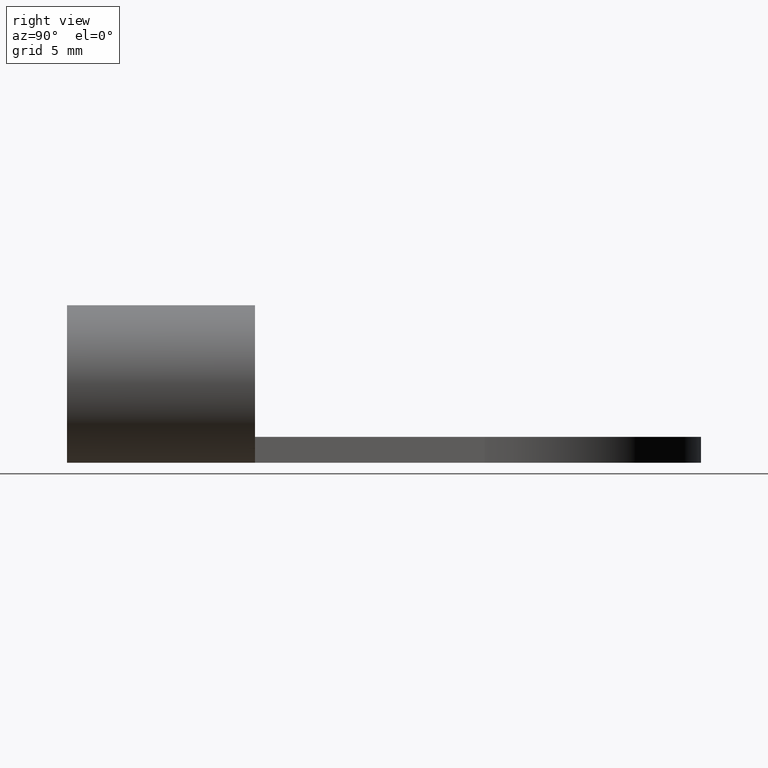
[diagram: clean part render]
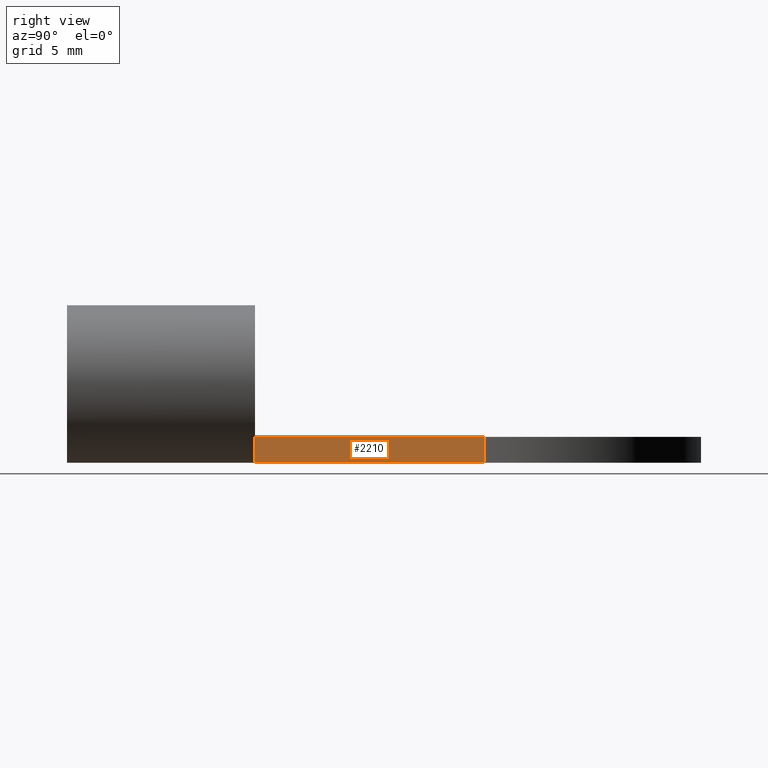
[diagram: same view with one face highlighted and labeled with its STEP entity id]
A machine part, right view. The second image highlights one B-rep face of the part: STEP entity #2210.
In plain terms, the highlighted planar face has unit normal (0.9478, -0.3187, 0).
Its self-contained STEP definition (entity closure, byte-faithful):
#730=CARTESIAN_POINT('',(-3.80147815764083,214.840294226998,
128.357204948997));
#740=VERTEX_POINT('',#730);
#770=CARTESIAN_POINT('',(0.,215.497328884413,128.470164278242));
#780=DIRECTION('',(0.984968130986959,0.170238568175705,
0.0292679149503728));
#790=VECTOR('',#780,1.);
#800=LINE('',#770,#790);
#810=CARTESIAN_POINT('',(6.35002696791049,216.594846118612,
128.658852666609));
#820=VERTEX_POINT('',#810);
#830=EDGE_CURVE('',#740,#820,#800,.T.);
#1120=CARTESIAN_POINT('',(0.,215.683709738163,127.386069182157));
#1130=DIRECTION('',(-0.984968130986959,-0.170238568175705,
-0.0292679149503728));
#1140=VECTOR('',#1130,1.);
#1150=LINE('',#1120,#1140);
#1160=CARTESIAN_POINT('',(6.35002696140251,216.781226971236,
127.574757570331));
#1170=VERTEX_POINT('',#1160);
#1180=CARTESIAN_POINT('',(-3.80147816414881,215.026675079622,
127.273109852719));
#1190=VERTEX_POINT('',#1180);
#1200=EDGE_CURVE('',#1170,#1190,#1150,.T.);
#1880=CARTESIAN_POINT('',(6.35002696140251,216.781226971236,
127.574757570331));
#1890=DIRECTION('',(5.91634389571428E-9,-0.169437138749457,
0.985540996616781));
#1900=VECTOR('',#1890,1.);
#1910=LINE('',#1880,#1900);
#1920=EDGE_CURVE('',#1170,#820,#1910,.T.);
#2050=CARTESIAN_POINT('',(-3.80147816414881,215.026675079622,
127.273109852719));
#2060=DIRECTION('',(-0.172736159908852,0.970726473275497,
0.166890182881021));
#2070=DIRECTION('',(-0.984968130986959,-0.170238568175705,
-0.0292679149503728));
#2080=AXIS2_PLACEMENT_3D('',#2050,#2060,#2070);
#2090=PLANE('',#2080);
#2100=ORIENTED_EDGE('',*,*,#1920,.F.);
#2110=ORIENTED_EDGE('',*,*,#830,.T.);
#2120=CARTESIAN_POINT('',(-3.80147816414881,215.026675079622,
127.273109852719));
#2130=DIRECTION('',(5.91634389571428E-9,-0.169437138749457,
0.985540996616781));
#2140=VECTOR('',#2130,1.);
#2150=LINE('',#2120,#2140);
#2160=EDGE_CURVE('',#1190,#740,#2150,.T.);
#2170=ORIENTED_EDGE('',*,*,#2160,.T.);
#2180=ORIENTED_EDGE('',*,*,#1200,.T.);
#2190=EDGE_LOOP('',(#2180,#2170,#2110,#2100));
#2200=FACE_OUTER_BOUND('',#2190,.T.);
#2210=ADVANCED_FACE('',(#2200),#2090,.T.);